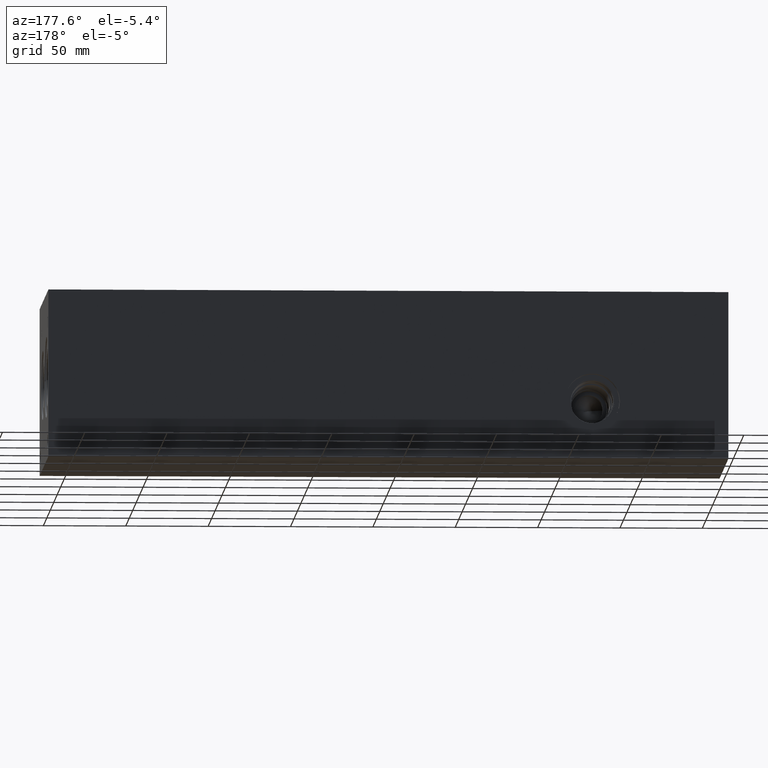
[diagram: clean part render]
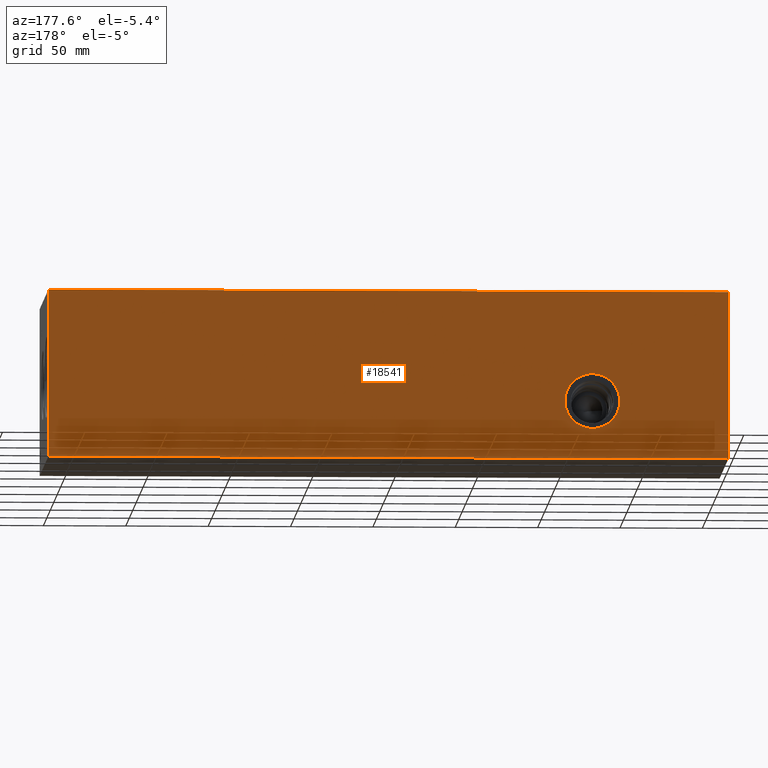
[diagram: same view with one face highlighted and labeled with its STEP entity id]
A machine part, auxiliary view. The second image highlights one B-rep face of the part: STEP entity #18541.
In plain terms, the highlighted planar face has unit normal (0, 1, 0).
Its self-contained STEP definition (entity closure, byte-faithful):
#555=CIRCLE('',#19045,16.6624);
#556=CIRCLE('',#19046,16.6624);
#1654=FACE_BOUND('',#3764,.T.);
#2657=FACE_OUTER_BOUND('',#3763,.T.);
#3763=EDGE_LOOP('',(#16370,#16371,#16372,#16373));
#3764=EDGE_LOOP('',(#16374,#16375));
#4302=LINE('',#26565,#5867);
#4362=LINE('',#26838,#5927);
#5372=LINE('',#32315,#6937);
#5373=LINE('',#32316,#6938);
#5867=VECTOR('',#20583,10.);
#5927=VECTOR('',#20697,10.);
#6937=VECTOR('',#24041,10.);
#6938=VECTOR('',#24042,10.);
#7555=VERTEX_POINT('',#26562);
#7556=VERTEX_POINT('',#26564);
#7613=VERTEX_POINT('',#26834);
#7614=VERTEX_POINT('',#26836);
#8165=VERTEX_POINT('',#30674);
#8166=VERTEX_POINT('',#30675);
#9473=EDGE_CURVE('',#7555,#7556,#4302,.T.);
#9557=EDGE_CURVE('',#7613,#7614,#4362,.T.);
#10552=EDGE_CURVE('',#8165,#8166,#555,.T.);
#10553=EDGE_CURVE('',#8166,#8165,#556,.T.);
#11314=EDGE_CURVE('',#7555,#7613,#5372,.T.);
#11315=EDGE_CURVE('',#7556,#7614,#5373,.T.);
#16370=ORIENTED_EDGE('',*,*,#11314,.T.);
#16371=ORIENTED_EDGE('',*,*,#9557,.T.);
#16372=ORIENTED_EDGE('',*,*,#11315,.F.);
#16373=ORIENTED_EDGE('',*,*,#9473,.F.);
#16374=ORIENTED_EDGE('',*,*,#10552,.T.);
#16375=ORIENTED_EDGE('',*,*,#10553,.T.);
#16955=PLANE('',#19863);
#18541=ADVANCED_FACE('',(#2657,#1654),#16955,.T.);
#19045=AXIS2_PLACEMENT_3D('',#30676,#22151,#22152);
#19046=AXIS2_PLACEMENT_3D('',#30677,#22153,#22154);
#19863=AXIS2_PLACEMENT_3D('',#32314,#24039,#24040);
#20583=DIRECTION('',(0.,0.,1.));
#20697=DIRECTION('',(0.,0.,1.));
#22151=DIRECTION('center_axis',(0.,-1.,0.));
#22152=DIRECTION('ref_axis',(1.,0.,0.));
#22153=DIRECTION('center_axis',(0.,-1.,0.));
#22154=DIRECTION('ref_axis',(1.,0.,0.));
#24039=DIRECTION('center_axis',(0.,1.,0.));
#24040=DIRECTION('ref_axis',(-1.,0.,0.));
#24041=DIRECTION('',(-1.,0.,0.));
#24042=DIRECTION('',(-1.,0.,0.));
#26562=CARTESIAN_POINT('',(412.75,127.,0.));
#26564=CARTESIAN_POINT('',(412.75,127.,101.6));
#26565=CARTESIAN_POINT('',(412.75,127.,0.));
#26834=CARTESIAN_POINT('',(0.,127.,0.));
#26836=CARTESIAN_POINT('',(0.,127.,101.6));
#26838=CARTESIAN_POINT('',(0.,127.,0.));
#30674=CARTESIAN_POINT('',(99.2124,127.,34.925));
#30675=CARTESIAN_POINT('',(65.8876,127.,34.925));
#30676=CARTESIAN_POINT('Origin',(82.55,127.,34.925));
#30677=CARTESIAN_POINT('Origin',(82.55,127.,34.925));
#32314=CARTESIAN_POINT('Origin',(412.75,127.,0.));
#32315=CARTESIAN_POINT('',(412.75,127.,0.));
#32316=CARTESIAN_POINT('',(412.75,127.,101.6));